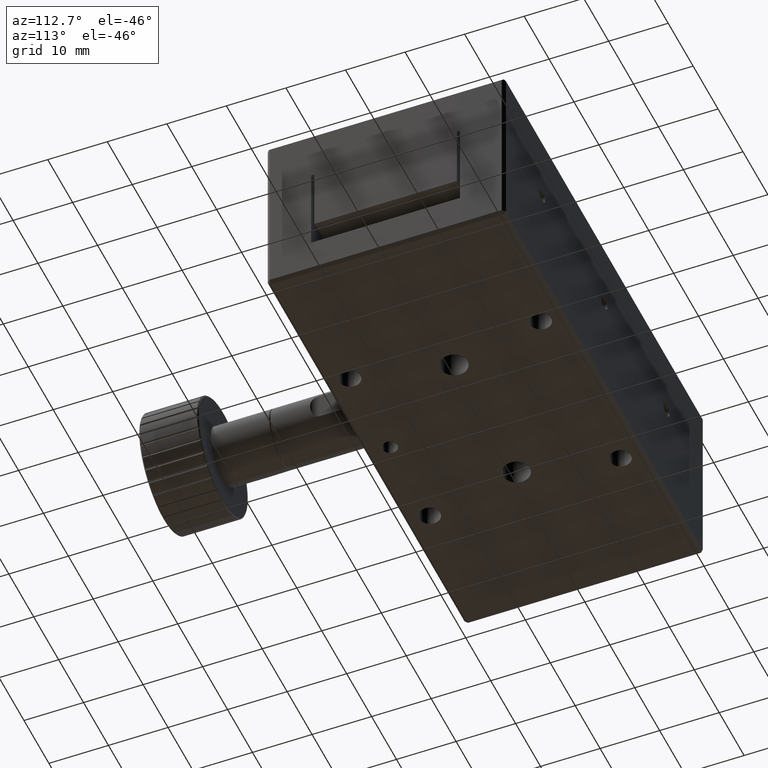
[diagram: clean part render]
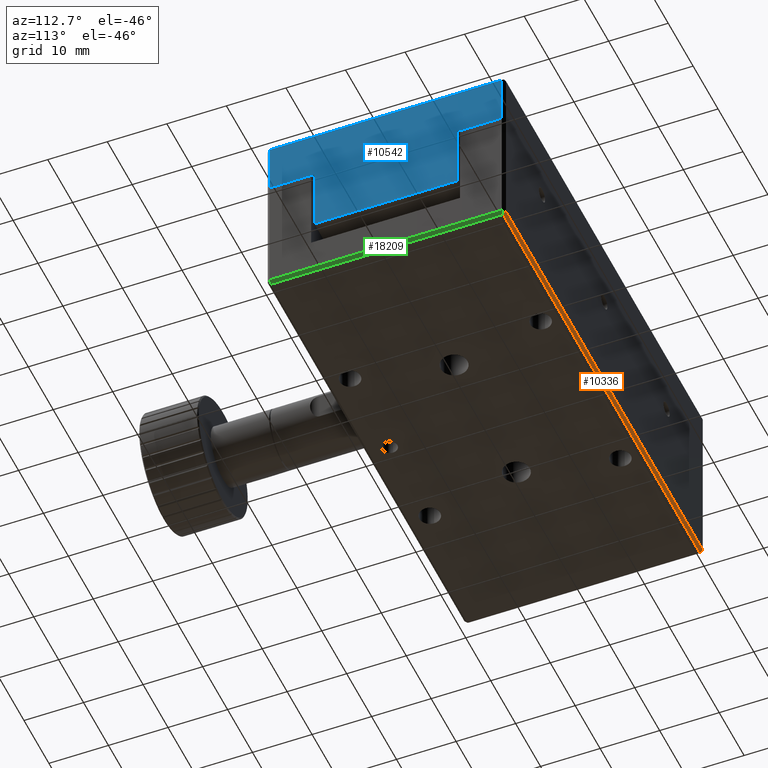
[diagram: same view with three faces highlighted in distinct colors, each labeled with its STEP entity id]
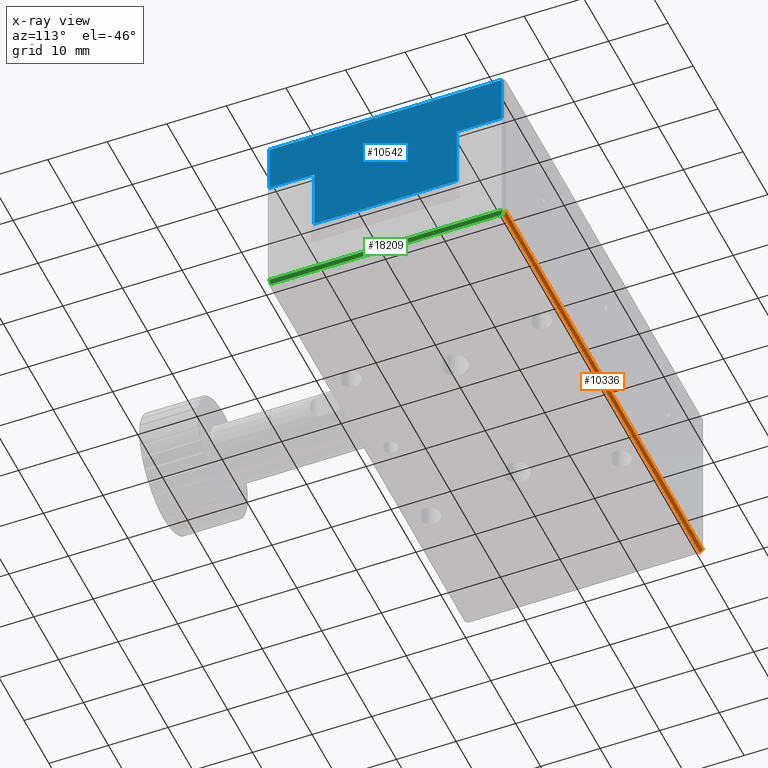
[diagram: x-ray of the same camera — body ghosted, the three highlighted faces saturated]
A machine part, auxiliary view with three faces highlighted in distinct colors.
The next image is the same camera in x-ray (body ghosted, the three faces saturated) — at least one of them is partly hidden behind the body in this view.
Their STEP definitions:

[orange] entity #10336 — the highlighted planar face has unit normal (0, 0.7071, -0.7071).
#671 = CARTESIAN_POINT ( 'NONE',  ( 0.0000000000000000000, 20.00000000000000000, 0.5000000000000000000 ) ) ;
#778 = VERTEX_POINT ( 'NONE', #18134 ) ;
#1290 = LINE ( 'NONE', #671, #17524 ) ;
#1597 = ORIENTED_EDGE ( 'NONE', *, *, #16367, .T. ) ;
#2816 = EDGE_LOOP ( 'NONE', ( #11718, #1597, #20588, #15314 ) ) ;
#3469 = LINE ( 'NONE', #17673, #20138 ) ;
#3782 = CARTESIAN_POINT ( 'NONE',  ( -39.50000000000000000, 20.00000000000000000, 0.5000000000000000000 ) ) ;
#4614 = VECTOR ( 'NONE', #20682, 999.9999999999998900 ) ;
#5218 = PLANE ( 'NONE',  #17363 ) ;
#7372 = DIRECTION ( 'NONE',  ( -1.000000000000000000, -0.0000000000000000000, -0.0000000000000000000 ) ) ;
#8665 = DIRECTION ( 'NONE',  ( 0.0000000000000000000, 0.7071067811865472400, -0.7071067811865479100 ) ) ;
#10336 = ADVANCED_FACE ( 'NONE', ( #20338 ), #5218, .T. ) ;
#11718 = ORIENTED_EDGE ( 'NONE', *, *, #14191, .T. ) ;
#12039 = VECTOR ( 'NONE', #7372, 1000.000000000000000 ) ;
#12057 = DIRECTION ( 'NONE',  ( 1.000000000000000000, 0.0000000000000000000, 0.0000000000000000000 ) ) ;
#13067 = VERTEX_POINT ( 'NONE', #14643 ) ;
#13364 = CARTESIAN_POINT ( 'NONE',  ( 39.50000000000000000, 19.99999999993800200, 0.4999999999379999300 ) ) ;
#14191 = EDGE_CURVE ( 'NONE', #15260, #13067, #3469, .T. ) ;
#14464 = CARTESIAN_POINT ( 'NONE',  ( -39.49999999993799800, 19.50000000009299900, 6.199925769169831200E-011 ) ) ;
#14643 = CARTESIAN_POINT ( 'NONE',  ( -39.50000000000000000, 19.99999999993800200, 0.4999999999380001500 ) ) ;
#15033 = EDGE_CURVE ( 'NONE', #778, #15260, #20605, .T. ) ;
#15260 = VERTEX_POINT ( 'NONE', #14464 ) ;
#15314 = ORIENTED_EDGE ( 'NONE', *, *, #15033, .T. ) ;
#16273 = VERTEX_POINT ( 'NONE', #13364 ) ;
#16367 = EDGE_CURVE ( 'NONE', #13067, #16273, #1290, .T. ) ;
#17024 = CARTESIAN_POINT ( 'NONE',  ( 0.0000000000000000000, 19.50000000000000000, 0.0000000000000000000 ) ) ;
#17068 = EDGE_CURVE ( 'NONE', #16273, #778, #17479, .T. ) ;
#17363 = AXIS2_PLACEMENT_3D ( 'NONE', #3782, #8665, #19958 ) ;
#17479 = LINE ( 'NONE', #20747, #4614 ) ;
#17524 = VECTOR ( 'NONE', #12057, 1000.000000000000000 ) ;
#17673 = CARTESIAN_POINT ( 'NONE',  ( -39.50000000000000000, 19.75000000000000000, 0.2500000000000000000 ) ) ;
#17756 = DIRECTION ( 'NONE',  ( -0.0000000000000000000, 0.7071067811865479100, 0.7071067811865472400 ) ) ;
#18134 = CARTESIAN_POINT ( 'NONE',  ( 39.49999999993799800, 19.50000000009299900, 6.199907124151971000E-011 ) ) ;
#19958 = DIRECTION ( 'NONE',  ( 1.000000000000000000, 0.0000000000000000000, 0.0000000000000000000 ) ) ;
#20138 = VECTOR ( 'NONE', #17756, 999.9999999999998900 ) ;
#20338 = FACE_OUTER_BOUND ( 'NONE', #2816, .T. ) ;
#20588 = ORIENTED_EDGE ( 'NONE', *, *, #17068, .T. ) ;
#20605 = LINE ( 'NONE', #17024, #12039 ) ;
#20682 = DIRECTION ( 'NONE',  ( 0.0000000000000000000, -0.7071067811865479100, -0.7071067811865472400 ) ) ;
#20747 = CARTESIAN_POINT ( 'NONE',  ( 39.50000000000000000, 19.75000000000000000, 0.2500000000000000000 ) ) ;

[blue] entity #10542 — the highlighted planar face has unit normal (-1, 0, 0).
#585 = VERTEX_POINT ( 'NONE', #5922 ) ;
#1068 = CARTESIAN_POINT ( 'NONE',  ( 40.00000000000000000, 11.97767041575000100, 10.00000000000000000 ) ) ;
#1304 = FACE_OUTER_BOUND ( 'NONE', #9805, .T. ) ;
#1596 = EDGE_CURVE ( 'NONE', #15201, #8185, #18944, .T. ) ;
#1806 = CARTESIAN_POINT ( 'NONE',  ( 40.00000000000000000, -11.97767040599999600, 19.75000000000000000 ) ) ;
#1836 = DIRECTION ( 'NONE',  ( 0.0000000000000000000, 1.000000000000000000, 0.0000000000000000000 ) ) ;
#2459 = LINE ( 'NONE', #6993, #6279 ) ;
#2467 = AXIS2_PLACEMENT_3D ( 'NONE', #20701, #2967, #14277 ) ;
#2525 = EDGE_CURVE ( 'NONE', #585, #16794, #2459, .T. ) ;
#2575 = VECTOR ( 'NONE', #11553, 1000.000000000000000 ) ;
#2782 = CARTESIAN_POINT ( 'NONE',  ( 40.00000000000000000, 19.50000000093750100, 29.50000000000000400 ) ) ;
#2967 = DIRECTION ( 'NONE',  ( -1.000000000000000000, 0.0000000000000000000, 0.0000000000000000000 ) ) ;
#3358 = LINE ( 'NONE', #15070, #7176 ) ;
#3805 = CARTESIAN_POINT ( 'NONE',  ( 40.00000000000000000, 19.49999999943268100, 20.99999999950000200 ) ) ;
#3902 = CARTESIAN_POINT ( 'NONE',  ( 40.00000000000000000, -19.50000000000000000, 20.99999999900000000 ) ) ;
#3934 = ORIENTED_EDGE ( 'NONE', *, *, #7444, .T. ) ;
#4800 = VECTOR ( 'NONE', #5234, 1000.000000000000000 ) ;
#5234 = DIRECTION ( 'NONE',  ( 0.0000000000000000000, 0.0000000000000000000, 1.000000000000000000 ) ) ;
#5666 = DIRECTION ( 'NONE',  ( -0.0000000000000000000, -0.0000000000000000000, -1.000000000000000000 ) ) ;
#5922 = CARTESIAN_POINT ( 'NONE',  ( 40.00000000000000000, -11.97767041575000000, 20.99999999950000200 ) ) ;
#6069 = DIRECTION ( 'NONE',  ( -0.0000000000000000000, -1.000000000000000000, -0.0000000000000000000 ) ) ;
#6215 = ORIENTED_EDGE ( 'NONE', *, *, #6519, .T. ) ;
#6279 = VECTOR ( 'NONE', #12323, 1000.000000000000000 ) ;
#6342 = VECTOR ( 'NONE', #1836, 1000.000000000000000 ) ;
#6519 = EDGE_CURVE ( 'NONE', #9949, #18792, #3358, .T. ) ;
#6972 = VERTEX_POINT ( 'NONE', #3805 ) ;
#6993 = CARTESIAN_POINT ( 'NONE',  ( 40.00000000000000000, 0.0000000000000000000, 20.99999999800000000 ) ) ;
#7176 = VECTOR ( 'NONE', #15136, 1000.000000000000000 ) ;
#7183 = CARTESIAN_POINT ( 'NONE',  ( 40.00000000000000000, -11.97767041575000000, 10.00000000000000000 ) ) ;
#7444 = EDGE_CURVE ( 'NONE', #13341, #6972, #14948, .T. ) ;
#7663 = ORIENTED_EDGE ( 'NONE', *, *, #16852, .F. ) ;
#8185 = VERTEX_POINT ( 'NONE', #7183 ) ;
#8896 = EDGE_CURVE ( 'NONE', #15201, #13341, #13705, .T. ) ;
#9021 = EDGE_CURVE ( 'NONE', #8185, #585, #20282, .T. ) ;
#9423 = VECTOR ( 'NONE', #9604, 1000.000000000000000 ) ;
#9577 = LINE ( 'NONE', #16535, #4800 ) ;
#9604 = DIRECTION ( 'NONE',  ( -0.0000000000000000000, -0.0000000000000000000, 1.000000000000000000 ) ) ;
#9791 = CARTESIAN_POINT ( 'NONE',  ( 40.00000000000000000, 15.98883520950000100, 21.00000000000000000 ) ) ;
#9805 = EDGE_LOOP ( 'NONE', ( #13240, #12552, #13900, #12923, #3934, #7663, #6215, #12762 ) ) ;
#9949 = VERTEX_POINT ( 'NONE', #2782 ) ;
#10542 = ADVANCED_FACE ( 'NONE', ( #1304 ), #12651, .F. ) ;
#11553 = DIRECTION ( 'NONE',  ( 0.0000000000000000000, 0.0000000000000000000, 1.000000000000000000 ) ) ;
#12323 = DIRECTION ( 'NONE',  ( -0.0000000000000000000, -1.000000000000000000, -0.0000000000000000000 ) ) ;
#12552 = ORIENTED_EDGE ( 'NONE', *, *, #9021, .F. ) ;
#12651 = PLANE ( 'NONE',  #2467 ) ;
#12762 = ORIENTED_EDGE ( 'NONE', *, *, #20301, .F. ) ;
#12923 = ORIENTED_EDGE ( 'NONE', *, *, #8896, .T. ) ;
#13240 = ORIENTED_EDGE ( 'NONE', *, *, #2525, .F. ) ;
#13341 = VERTEX_POINT ( 'NONE', #15414 ) ;
#13705 = LINE ( 'NONE', #19284, #9423 ) ;
#13900 = ORIENTED_EDGE ( 'NONE', *, *, #1596, .F. ) ;
#14277 = DIRECTION ( 'NONE',  ( 0.0000000000000000000, 0.0000000000000000000, 1.000000000000000000 ) ) ;
#14948 = LINE ( 'NONE', #9791, #6342 ) ;
#15070 = CARTESIAN_POINT ( 'NONE',  ( 40.00000000000000000, 0.0000000000000000000, 29.50000000000000400 ) ) ;
#15136 = DIRECTION ( 'NONE',  ( -0.0000000000000000000, -1.000000000000000000, -0.0000000000000000000 ) ) ;
#15201 = VERTEX_POINT ( 'NONE', #1068 ) ;
#15361 = CARTESIAN_POINT ( 'NONE',  ( 40.00000000000000000, 19.50000000000000000, 19.75000000000000000 ) ) ;
#15414 = CARTESIAN_POINT ( 'NONE',  ( 40.00000000000000000, 11.97767041250000200, 20.99999999900000000 ) ) ;
#15699 = VECTOR ( 'NONE', #6069, 1000.000000000000000 ) ;
#15764 = CARTESIAN_POINT ( 'NONE',  ( 40.00000000000000000, 0.0000000000000000000, 10.00000000000000000 ) ) ;
#16535 = CARTESIAN_POINT ( 'NONE',  ( 40.00000000000000000, -19.50000000000000000, 19.75000000000000000 ) ) ;
#16794 = VERTEX_POINT ( 'NONE', #3902 ) ;
#16852 = EDGE_CURVE ( 'NONE', #9949, #6972, #17237, .T. ) ;
#17006 = CARTESIAN_POINT ( 'NONE',  ( 40.00000000000000000, -19.50000000093750100, 29.50000000000000400 ) ) ;
#17237 = LINE ( 'NONE', #15361, #17751 ) ;
#17751 = VECTOR ( 'NONE', #5666, 1000.000000000000000 ) ;
#18792 = VERTEX_POINT ( 'NONE', #17006 ) ;
#18944 = LINE ( 'NONE', #15764, #15699 ) ;
#19284 = CARTESIAN_POINT ( 'NONE',  ( 40.00000000000000000, 11.97767041900000100, 15.50000000000000000 ) ) ;
#20282 = LINE ( 'NONE', #1806, #2575 ) ;
#20301 = EDGE_CURVE ( 'NONE', #16794, #18792, #9577, .T. ) ;
#20701 = CARTESIAN_POINT ( 'NONE',  ( 40.00000000000000000, -19.50000000000000000, 10.00000000000000000 ) ) ;

[green] entity #18209 — the highlighted planar face has unit normal (0.7071, 0, -0.7071).
#778 = VERTEX_POINT ( 'NONE', #18134 ) ;
#1587 = VERTEX_POINT ( 'NONE', #7622 ) ;
#1619 = DIRECTION ( 'NONE',  ( -0.0000000000000000000, -1.000000000000000000, -0.0000000000000000000 ) ) ;
#1937 = ORIENTED_EDGE ( 'NONE', *, *, #11813, .F. ) ;
#2577 = VECTOR ( 'NONE', #15083, 1000.000000000000100 ) ;
#2661 = VECTOR ( 'NONE', #13150, 1000.000000000000000 ) ;
#3882 = VERTEX_POINT ( 'NONE', #16300 ) ;
#3983 = CARTESIAN_POINT ( 'NONE',  ( 40.00000000000000000, 19.50000000000000000, 0.5000000000000000000 ) ) ;
#4761 = AXIS2_PLACEMENT_3D ( 'NONE', #3983, #16900, #7252 ) ;
#5281 = VERTEX_POINT ( 'NONE', #13960 ) ;
#5399 = CARTESIAN_POINT ( 'NONE',  ( 39.99999999985500000, 19.50000000007250000, 0.4999999999274985500 ) ) ;
#6226 = CARTESIAN_POINT ( 'NONE',  ( 39.75000000000000000, -19.50000000000000000, 0.2500000000000000000 ) ) ;
#7252 = DIRECTION ( 'NONE',  ( 0.0000000000000000000, -1.000000000000000000, 0.0000000000000000000 ) ) ;
#7622 = CARTESIAN_POINT ( 'NONE',  ( 39.99999999996375500, 19.50000000005437800, 0.5000000000362498900 ) ) ;
#7686 = ORIENTED_EDGE ( 'NONE', *, *, #16787, .F. ) ;
#9707 = CARTESIAN_POINT ( 'NONE',  ( 39.50000000000000000, 0.0000000000000000000, 0.0000000000000000000 ) ) ;
#11813 = EDGE_CURVE ( 'NONE', #778, #3882, #19227, .T. ) ;
#13150 = DIRECTION ( 'NONE',  ( -0.0000000000000000000, -1.000000000000000000, -0.0000000000000000000 ) ) ;
#13154 = ORIENTED_EDGE ( 'NONE', *, *, #14781, .T. ) ;
#13197 = VECTOR ( 'NONE', #17500, 999.9999999999998900 ) ;
#13624 = PLANE ( 'NONE',  #4761 ) ;
#13960 = CARTESIAN_POINT ( 'NONE',  ( 40.00000000000000000, -19.50000000000000000, 0.5000000000000001100 ) ) ;
#14781 = EDGE_CURVE ( 'NONE', #1587, #5281, #19867, .T. ) ;
#14999 = LINE ( 'NONE', #5399, #2577 ) ;
#15083 = DIRECTION ( 'NONE',  ( -0.7071067812229625500, 7.282775741313104000E-011, -0.7071067811501325900 ) ) ;
#16300 = CARTESIAN_POINT ( 'NONE',  ( 39.50000000000000000, -19.50000000001033100, 1.033305656750888000E-011 ) ) ;
#16787 = EDGE_CURVE ( 'NONE', #1587, #778, #14999, .T. ) ;
#16900 = DIRECTION ( 'NONE',  ( 0.7071067811865472400, 0.0000000000000000000, -0.7071067811865479100 ) ) ;
#17057 = EDGE_CURVE ( 'NONE', #5281, #3882, #17998, .T. ) ;
#17080 = EDGE_LOOP ( 'NONE', ( #7686, #13154, #20187, #1937 ) ) ;
#17500 = DIRECTION ( 'NONE',  ( -0.7071067811865479100, 0.0000000000000000000, -0.7071067811865472400 ) ) ;
#17998 = LINE ( 'NONE', #6226, #13197 ) ;
#18134 = CARTESIAN_POINT ( 'NONE',  ( 39.49999999993799800, 19.50000000009299900, 6.199907124151971000E-011 ) ) ;
#18209 = ADVANCED_FACE ( 'NONE', ( #19742 ), #13624, .T. ) ;
#19227 = LINE ( 'NONE', #9707, #19745 ) ;
#19588 = CARTESIAN_POINT ( 'NONE',  ( 40.00000000000000000, 0.0000000000000000000, 0.5000000000000000000 ) ) ;
#19742 = FACE_OUTER_BOUND ( 'NONE', #17080, .T. ) ;
#19745 = VECTOR ( 'NONE', #1619, 1000.000000000000000 ) ;
#19867 = LINE ( 'NONE', #19588, #2661 ) ;
#20187 = ORIENTED_EDGE ( 'NONE', *, *, #17057, .T. ) ;